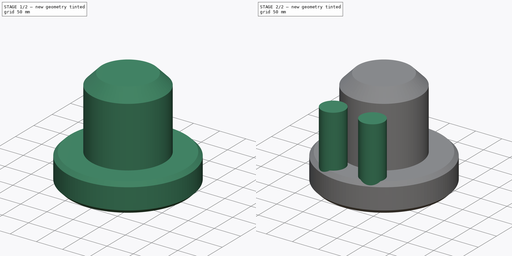
[diagram: build sequence overview — one tinted view per stage of 2, left to right]
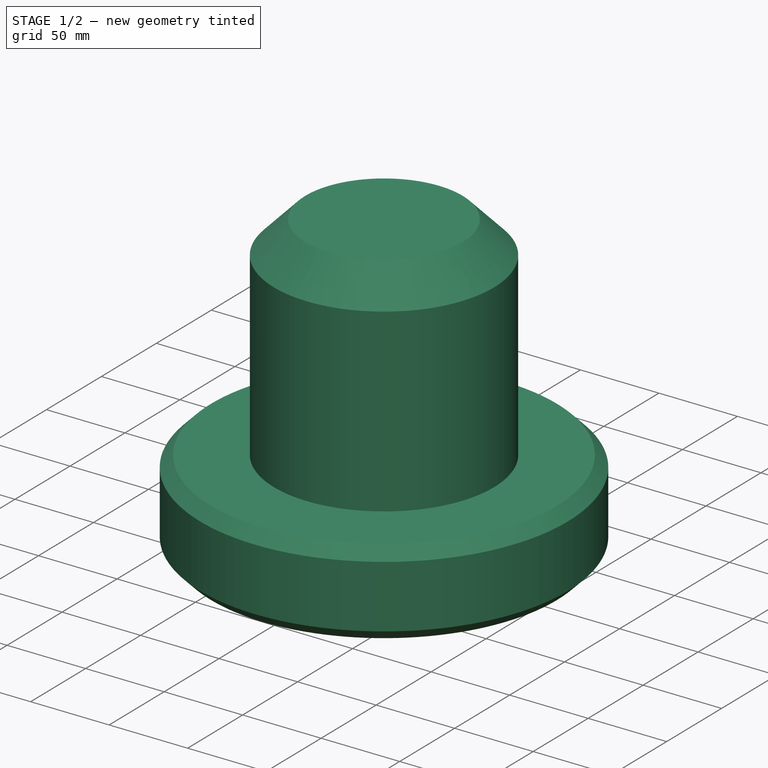
[diagram: stage 1 of 2 — iso view after this stage's code; geometry added in this stage tinted green]
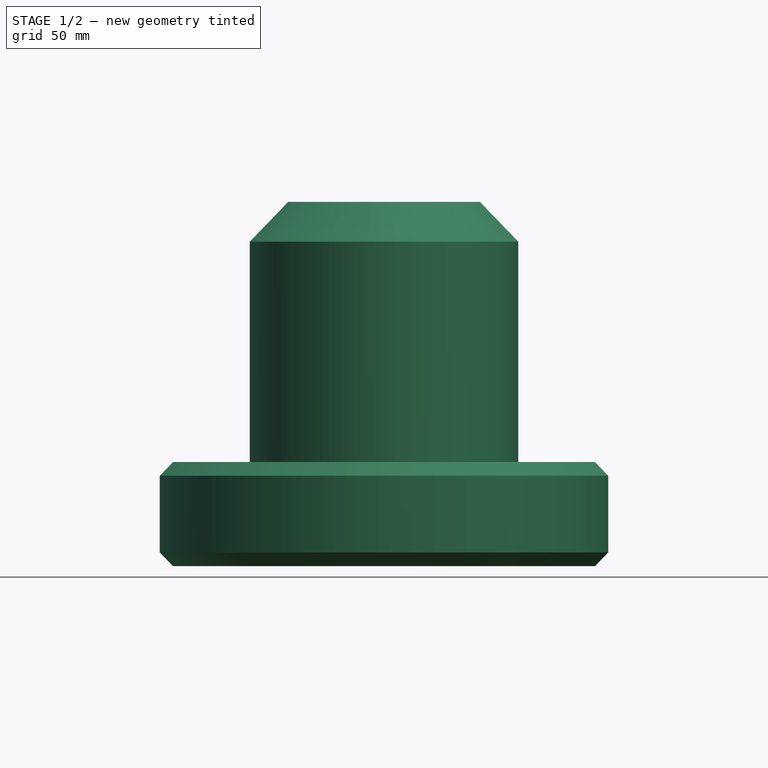
[diagram: stage 1 of 2 — front view after this stage's code; geometry added in this stage tinted green]
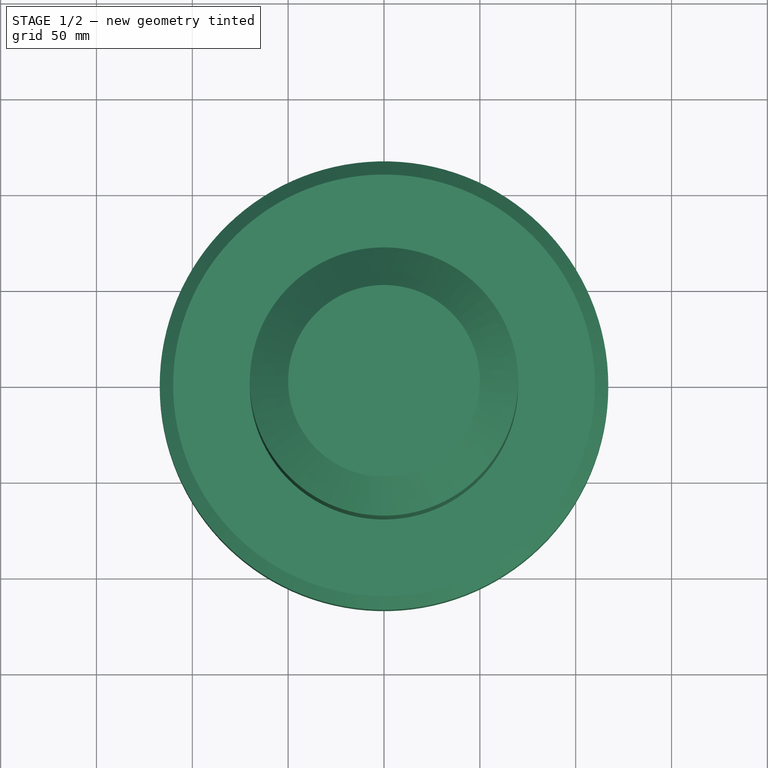
[diagram: stage 1 of 2 — top view after this stage's code; geometry added in this stage tinted green]
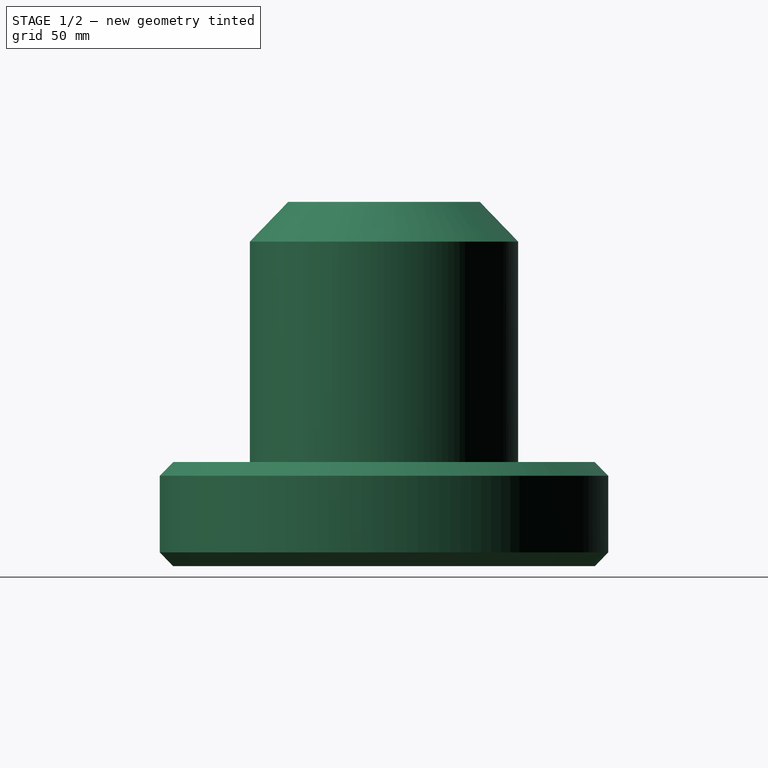
[diagram: stage 1 of 2 — right view after this stage's code; geometry added in this stage tinted green]
FCSTD DOCUMENT  (FreeCAD 1.0R39285 (Git))
Label: motor
License: All rights reserved
LicenseURL: https://en.wikipedia.org/wiki/All_rights_reserved
objects: Sketcher::SketchObject×2, PartDesign::Revolution×1, PartDesign::Pad×1, PartDesign::Body×1
note: 11 computed .brp shape members not serialized (recipe doc carries the construction recipe); baked Part::Feature solids carry a one-line shape summary decoded from their .brp

FEATURE [Sketcher::SketchObject] Sketch
  ArcFitTolerance = 1e-06
  AttachmentSupport = -> [XZ_Plane]
  FullyConstrained = true
  MakeInternals = false
  MapMode = 5
  Placement = pos=(0,0,0) rot=(1,0,0;1.5708rad)
  sketch-geometry (11):
    g0: LineSegment StartX=70 StartY=39.2829 StartZ=0 EndX=110 EndY=39.2829 EndZ=0
    g1: LineSegment StartX=110 StartY=39.2829 StartZ=0 EndX=117 EndY=32.1414 EndZ=0
    g2: LineSegment StartX=117 StartY=32.1414 StartZ=0 EndX=117 EndY=-7.85857 EndZ=0
    g3: LineSegment StartX=117 StartY=-7.85857 StartZ=0 EndX=110 EndY=-15 EndZ=0
    g4: LineSegment StartX=110 StartY=-15 StartZ=0 EndX=50 EndY=-15 EndZ=0
    g5: LineSegment StartX=50 StartY=-15 StartZ=0 EndX=50 EndY=0 EndZ=0
    g6: LineSegment StartX=50 StartY=0 StartZ=0 EndX=0 EndY=0 EndZ=0
    g7: LineSegment StartX=0 StartY=0 StartZ=0 EndX=0 EndY=175 EndZ=0
    g8: LineSegment StartX=0 StartY=175 StartZ=0 EndX=50 EndY=175 EndZ=0
    g9: LineSegment StartX=50 StartY=175 StartZ=0 EndX=70 EndY=154.283 EndZ=0
    g10: LineSegment StartX=70 StartY=154.283 StartZ=0 EndX=70 EndY=39.2829 EndZ=0
  constraints (32):
    c: Horizontal(g0)
    c: Coincident(g0,g1)
    c: Coincident(g1,g2)
    c: Vertical(g2)
    c: Coincident(g2,g3)
    c: Coincident(g3,g4)
    c: Horizontal(g4)
    c: Coincident(g4,g5)
    c: Coincident(g5,g6)
    c: Coincident(g6,g-1)
    c: Coincident(g6,g7)
    c: PointOnObject(g7,g-2)
    c: Coincident(g7,g8)
    c: Coincident(g8,g9)
    c: Coincident(g9,g10)
    c: Coincident(g10,g0)
    c: Vertical(g10)
    c: Horizontal(g6)
    c: Horizontal(g8)
    c: Vertical(g3,g0)
    c: Equal(g3,g1)
    c: Vertical(g5)
    c: Distance(g6,g6) = 50
    c: Distance(g0,g0) = 40
    c: DistanceX(g8,g8) = 50
    c: Distance(g10,g10) = 115
    c: DistanceY(g7,g7) = 175
    c: DistanceY(g2,g2) = 40
    c: DistanceX(g4,g4) = 60
    c: Distance(g3,g3) = 10
    c: DistanceY(g5,g5) = 15
    c: DistanceX(g1,g1) = 7
FEATURE [PartDesign::Revolution] Revolution
  Angle = 360
  Angle2 = 60
  Axis = (0,2e-16,1)
  Base = (0,0,0)
  Placement = pos=(0,0,0) rot=(1,0,0;1.5708rad)
  Profile = -> Sketch
  ReferenceAxis = -> Sketch [V_Axis]
  Refine = true
  Reversed = true
  Suppressed = false
  Type = 0
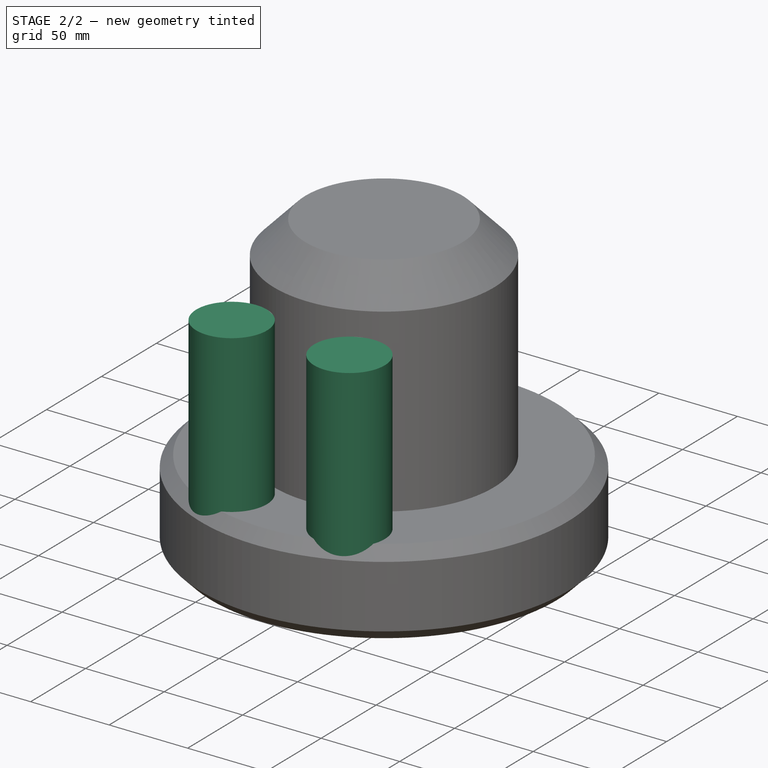
[diagram: stage 2 of 2 — iso view after this stage's code; geometry added in this stage tinted green]
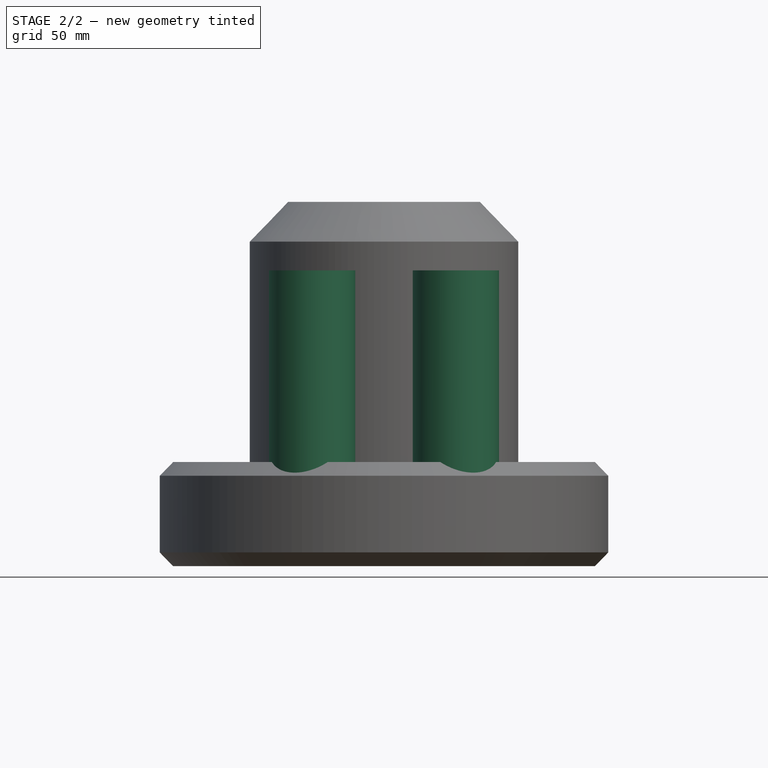
[diagram: stage 2 of 2 — front view after this stage's code; geometry added in this stage tinted green]
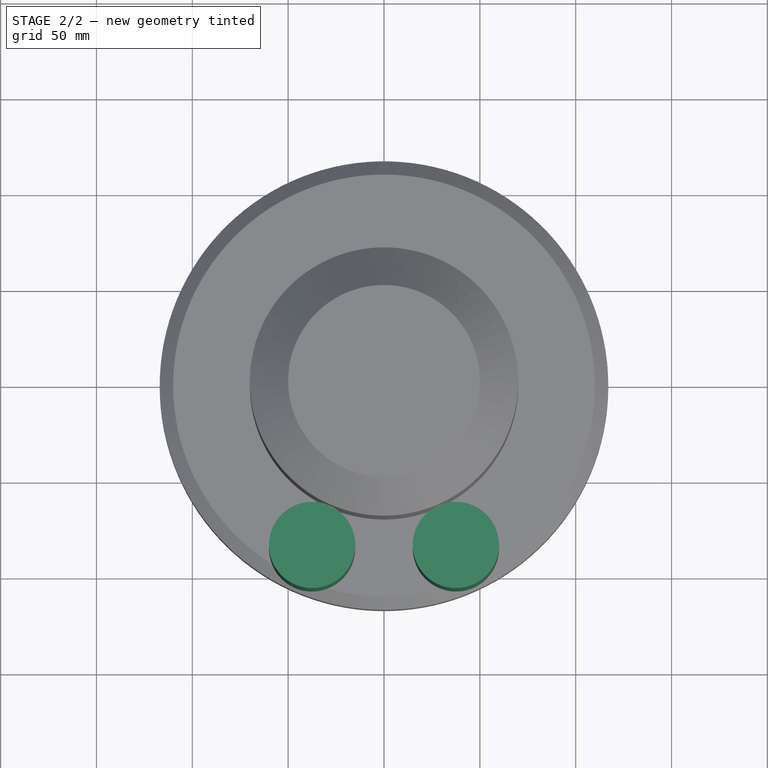
[diagram: stage 2 of 2 — top view after this stage's code; geometry added in this stage tinted green]
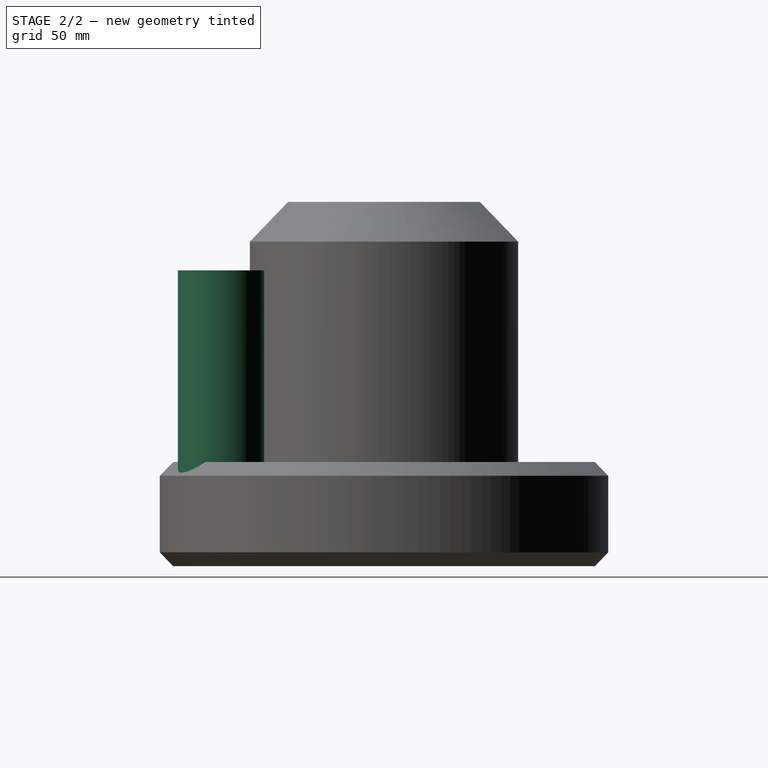
[diagram: stage 2 of 2 — right view after this stage's code; geometry added in this stage tinted green]
FEATURE [Sketcher::SketchObject] Sketch001
  ArcFitTolerance = 1e-06
  AttachmentSupport = -> [Revolution]
  FullyConstrained = true
  MakeInternals = false
  MapMode = 5
  Placement = pos=(0,8.7e-15,39.2829) rot=(0,0,1;3.14159rad)
  sketch-geometry (2):
    g0: Circle CenterX=-37.5 CenterY=85 CenterZ=0 NormalX=0 NormalY=0 NormalZ=1 AngleXU=0 Radius=22.5
    g1: Circle CenterX=37.5 CenterY=85 CenterZ=0 NormalX=0 NormalY=0 NormalZ=1 AngleXU=0 Radius=22.5
  constraints (6):
    c: Horizontal(g0,g1)
    c: Equal(g0,g1)
    c: DistanceX(g0,g1) = 75
    c: Diameter(g1) = 45
    c: DistanceY(g-1,g1) = 85
    c: DistanceX(g-1,g1) = 37.5
FEATURE [PartDesign::Pad] Pad
  BaseFeature = -> Revolution
  Direction = (0,0,1)
  Length = 100
  Length2 = 40
  Placement = pos=(0,0,0) rot=(1,0,0;1.5708rad)
  Profile = -> Sketch001
  ReferenceAxis = -> Sketch001 [N_Axis]
  Refine = true
  Suppressed = false
  Type = 4
FEATURE [PartDesign::Body] Body
  AllowCompound = false
  Group = -> [Sketch,Revolution,Sketch001,Pad]
  Origin = -> Origin
  Tip = -> Pad
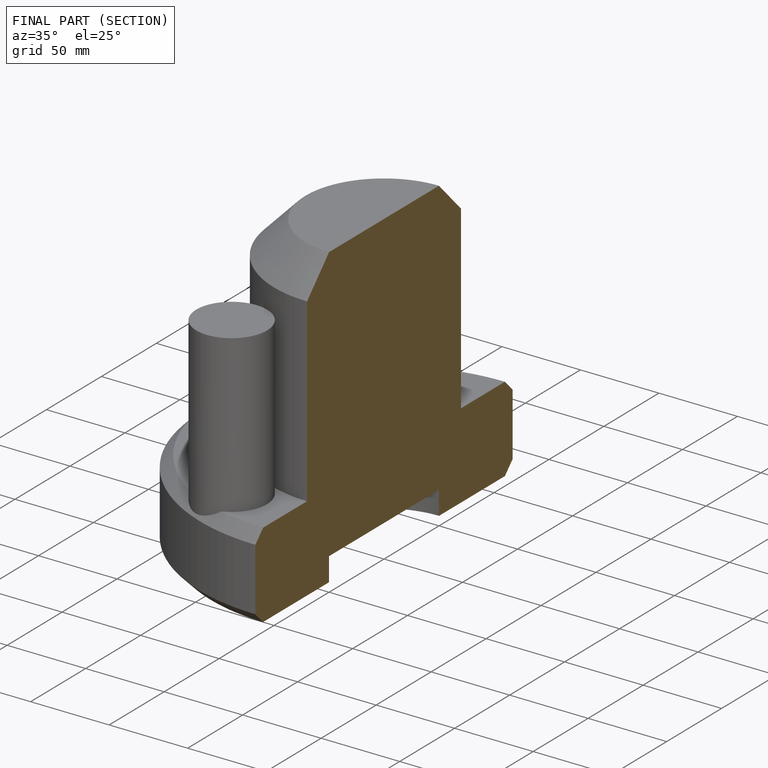
[diagram: finished part — half-section view (interior)]
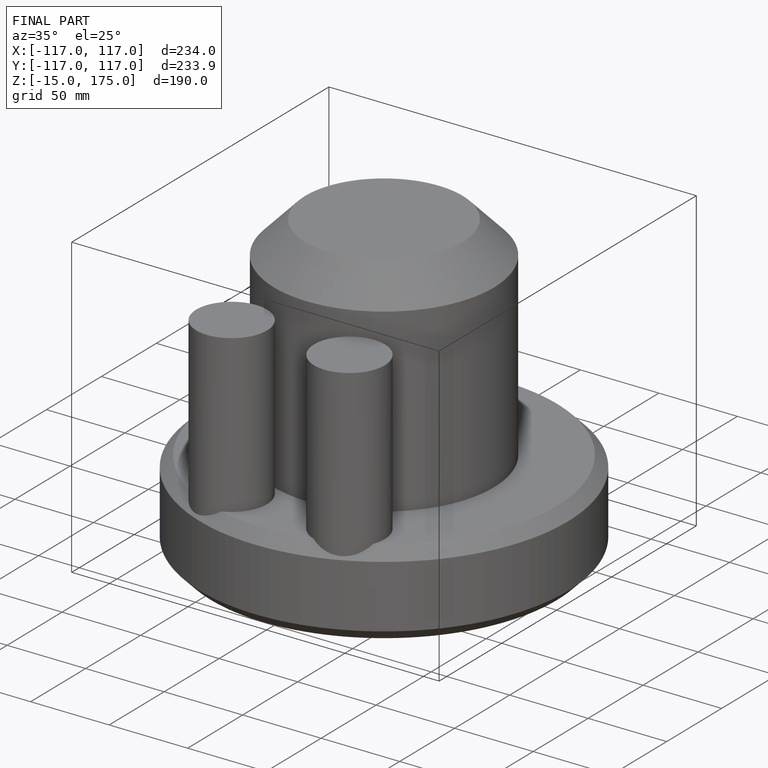
[diagram: finished part — iso view with bounding-box wireframe]
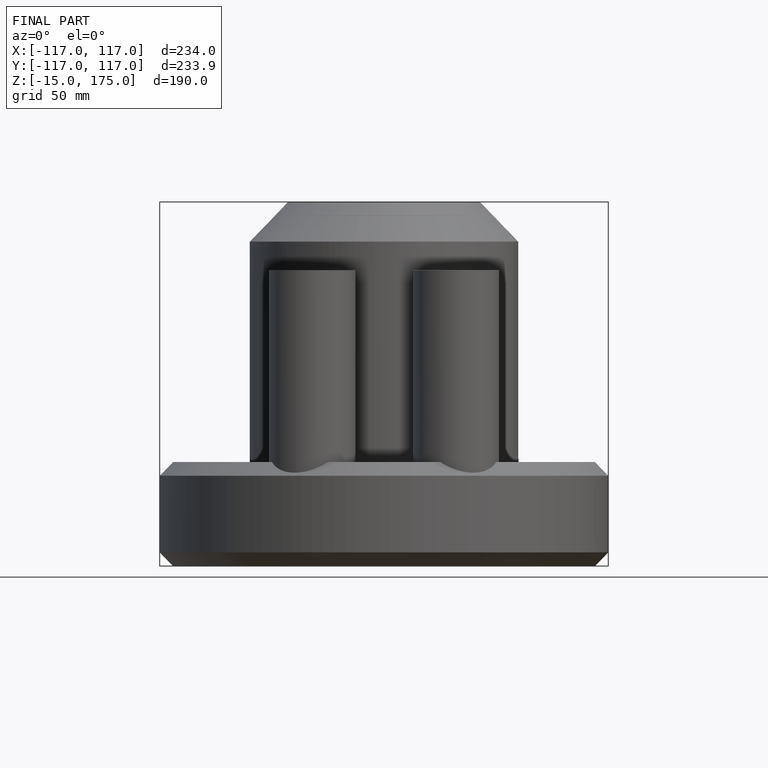
[diagram: finished part — front view with bounding-box wireframe]
